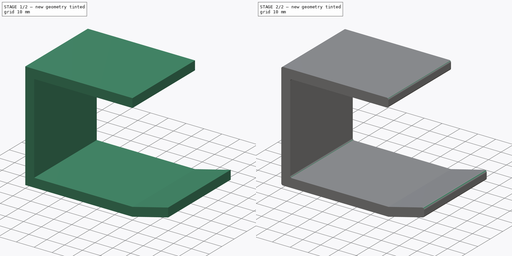
[diagram: build sequence overview — one tinted view per stage of 2, left to right]
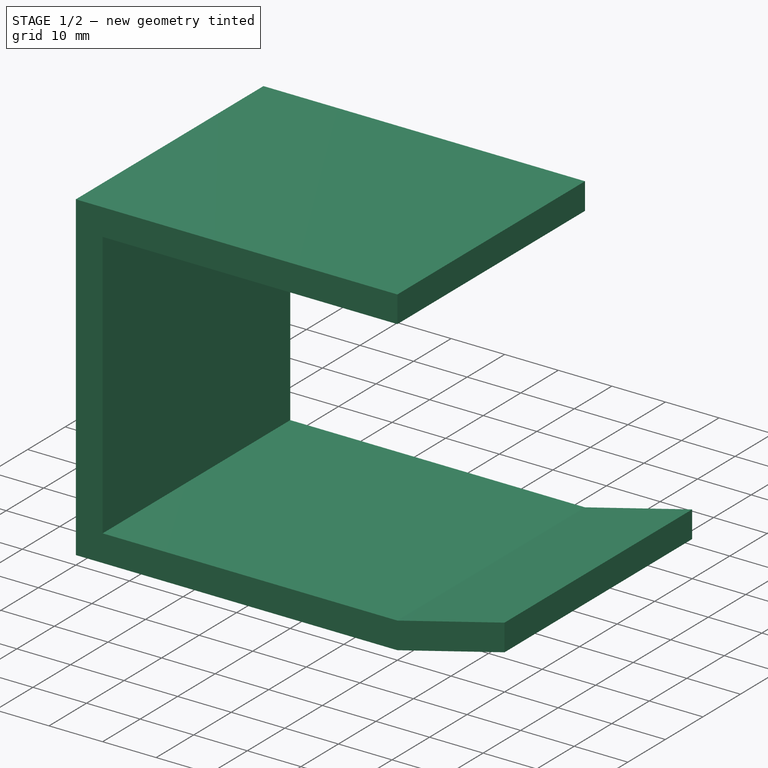
[diagram: stage 1 of 2 — iso view after this stage's code; geometry added in this stage tinted green]
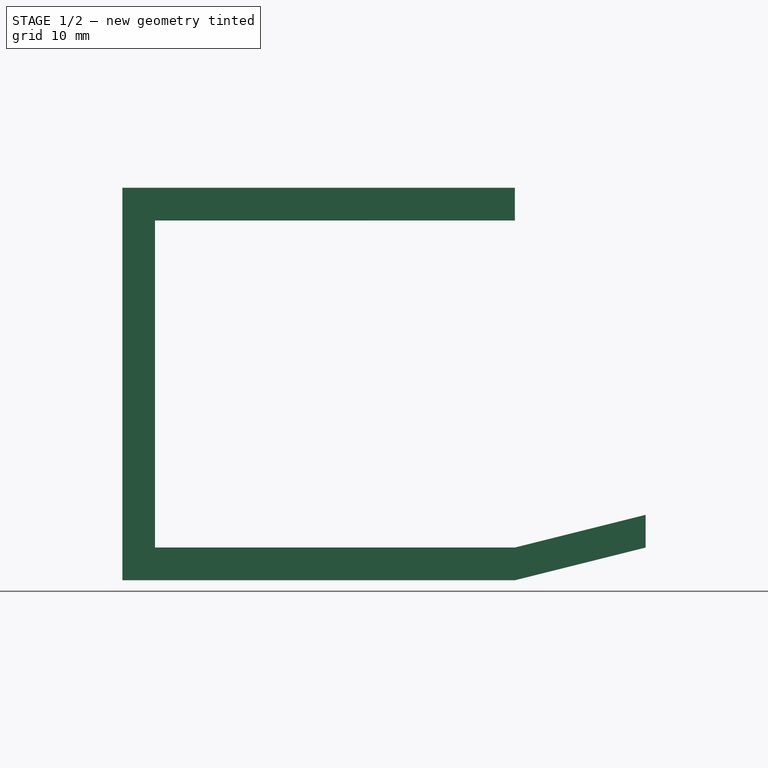
[diagram: stage 1 of 2 — front view after this stage's code; geometry added in this stage tinted green]
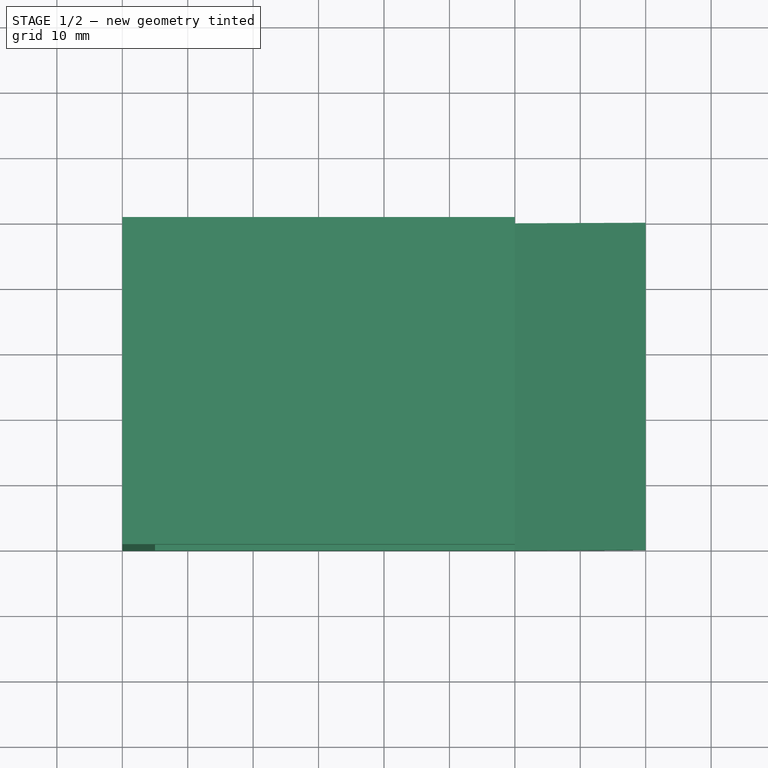
[diagram: stage 1 of 2 — top view after this stage's code; geometry added in this stage tinted green]
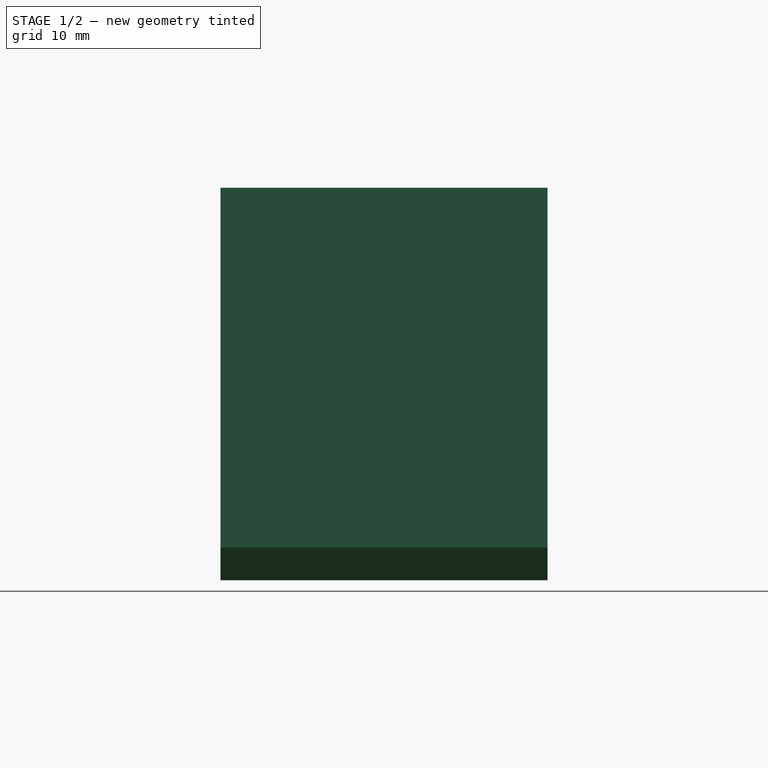
[diagram: stage 1 of 2 — right view after this stage's code; geometry added in this stage tinted green]
FCSTD DOCUMENT  (FreeCAD 0.19R24291 (Git))
Label: headphone-holder
License: All rights reserved
LicenseURL: http://en.wikipedia.org/wiki/All_rights_reserved
objects: Sketcher::SketchObject×1, PartDesign::Pad×1, PartDesign::Fillet×1, PartDesign::Body×1
note: 6 computed .brp shape members not serialized (recipe doc carries the construction recipe); baked Part::Feature solids carry a one-line shape summary decoded from their .brp

FEATURE [Sketcher::SketchObject] Sketch  label="SideProfile"
  FullyConstrained = true
  MapMode = 5
  Placement = pos=(0,0,0) rot=(1,0,0;1.5708rad)
  Support = -> [XZ_Plane]
  sketch-geometry (10):
    g0: LineSegment StartX=0 StartY=0 StartZ=0 EndX=0 EndY=60 EndZ=0
    g1: LineSegment StartX=0 StartY=60 StartZ=0 EndX=60 EndY=60 EndZ=0
    g2: LineSegment StartX=60 StartY=60 StartZ=0 EndX=60 EndY=55 EndZ=0
    g3: LineSegment StartX=60 StartY=55 StartZ=0 EndX=5 EndY=55 EndZ=0
    g4: LineSegment StartX=5 StartY=55 StartZ=0 EndX=5 EndY=5 EndZ=0
    g5: LineSegment StartX=5 StartY=5 StartZ=0 EndX=60 EndY=5 EndZ=0
    g6: LineSegment StartX=60 StartY=5 StartZ=0 EndX=80 EndY=10 EndZ=0
    g7: LineSegment StartX=80 StartY=10 StartZ=0 EndX=80 EndY=5 EndZ=0
    g8: LineSegment StartX=80 StartY=5 StartZ=0 EndX=60 EndY=0 EndZ=0
    g9: LineSegment StartX=60 StartY=0 StartZ=0 EndX=0 EndY=0 EndZ=0
  constraints (29):
    c: Coincident(g-1,g0)
    c: PointOnObject(g0,g-2)
    c: Coincident(g0,g1)
    c: Horizontal(g1)
    c: Coincident(g1,g2)
    c: Vertical(g2)
    c: Coincident(g2,g3)
    c: Horizontal(g3)
    c: Coincident(g3,g4)
    c: Vertical(g4)
    c: Coincident(g4,g5)
    c: Horizontal(g5)
    c: Coincident(g5,g6)
    c: Coincident(g6,g7)
    c: Coincident(g7,g8)
    c: Coincident(g8,g9)
    c: Coincident(g9,g0)
    c: Horizontal(g9)
    c: Vertical(g5,g8)
    c: Vertical(g6,g7)
    c: DistanceX(g0,g4) = 5
    c: DistanceY(g0,g4) = 5
    c: DistanceX(g1,g1) = 60
    c: DistanceY(g2,g2) = 5
    c: DistanceY(g0,g0) = 60
    c: DistanceX(g9,g9) = 60
    c: DistanceX(g6,g6) = 20
    c: DistanceY(g8,g7) = 5
    c: DistanceY(g7,g7) = 5
FEATURE [PartDesign::Pad] Pad
  Direction = (1,1,1)
  Length = 50
  Length2 = 100
  Placement = pos=(0,0,0) rot=(1,0,0;1.5708rad)
  Profile = -> Sketch
  Type = 0
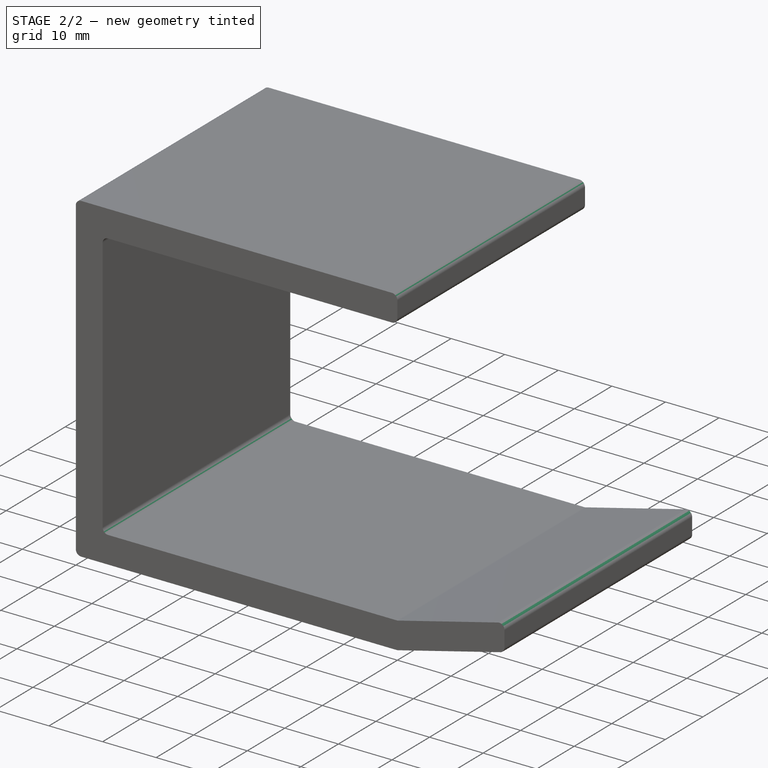
[diagram: stage 2 of 2 — iso view after this stage's code; geometry added in this stage tinted green]
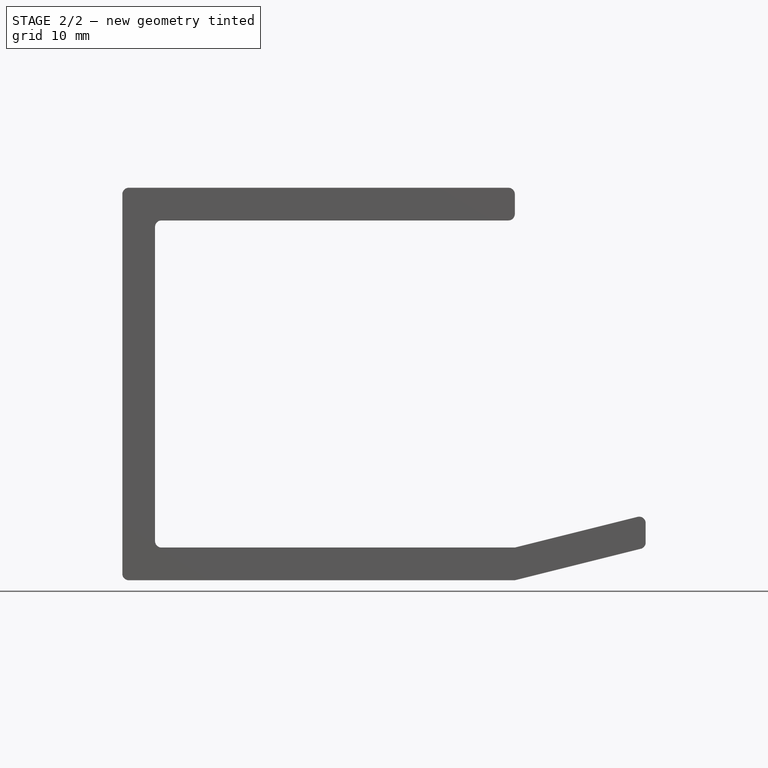
[diagram: stage 2 of 2 — front view after this stage's code; geometry added in this stage tinted green]
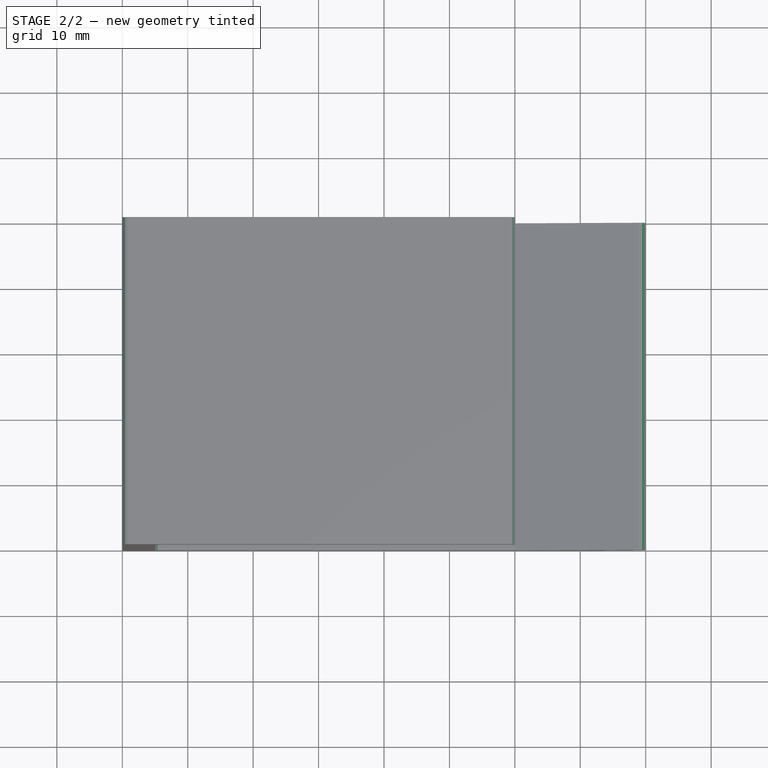
[diagram: stage 2 of 2 — top view after this stage's code; geometry added in this stage tinted green]
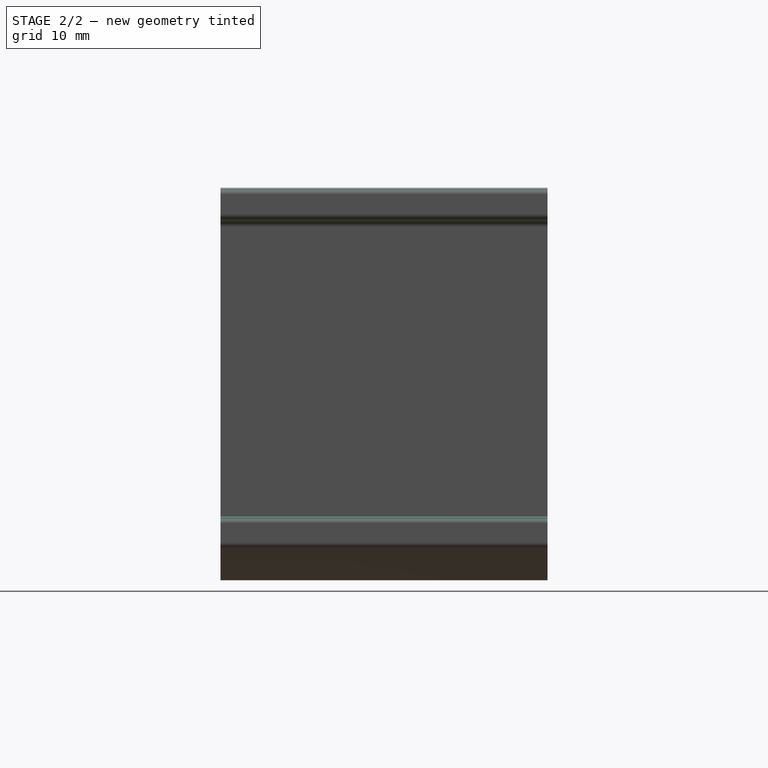
[diagram: stage 2 of 2 — right view after this stage's code; geometry added in this stage tinted green]
FEATURE [PartDesign::Fillet] Fillet
  Base = -> Pad [Edge1,Edge26,Edge23,Edge20,Edge8,Edge5,Edge2,Edge17,Edge14,Edge11]
  BaseFeature = -> Pad
  Placement = pos=(0,0,0) rot=(1,0,0;1.5708rad)
  Radius = 1
  SupportTransform = false
FEATURE [PartDesign::Body] Body  label="Headphone Holder"
  Group = -> [Sketch,Pad,Fillet]
  Origin = -> Origin
  Tip = -> Fillet
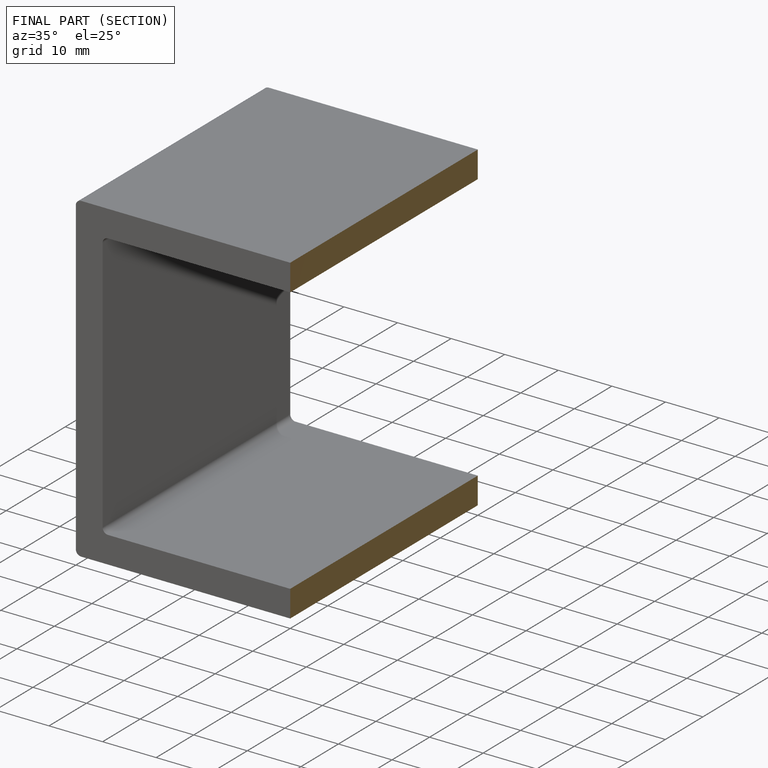
[diagram: finished part — half-section view (interior)]
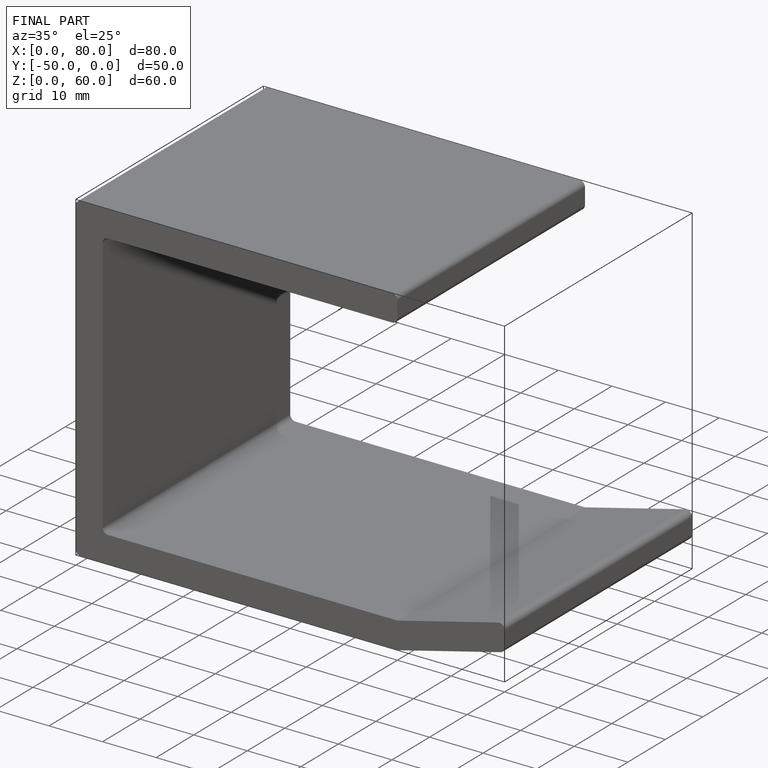
[diagram: finished part — iso view with bounding-box wireframe]
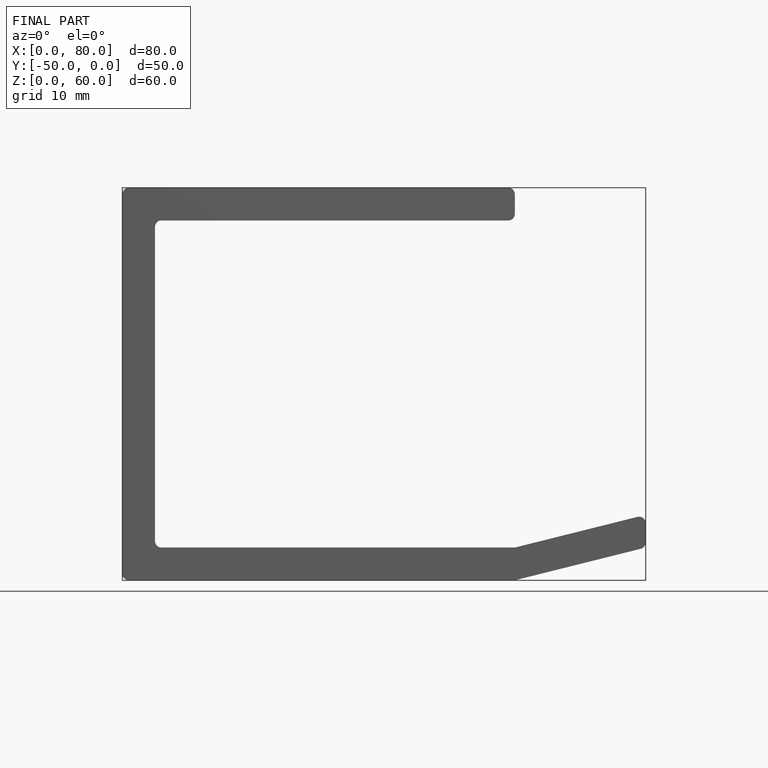
[diagram: finished part — front view with bounding-box wireframe]
